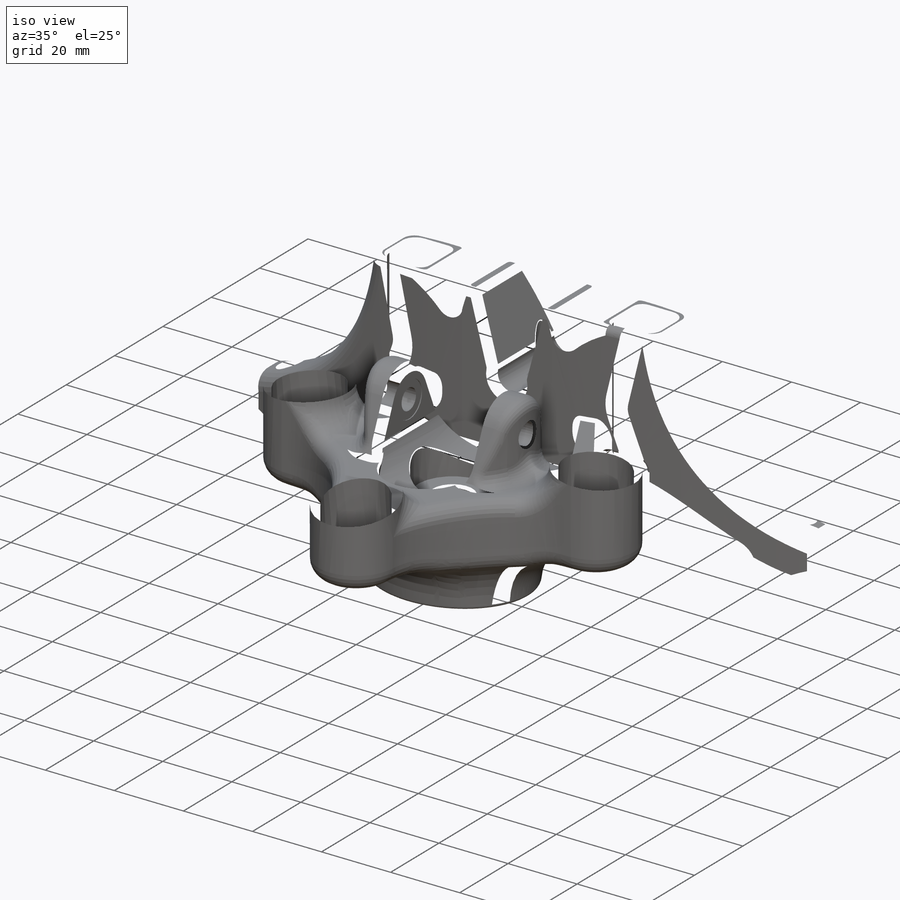
[diagram: iso view]
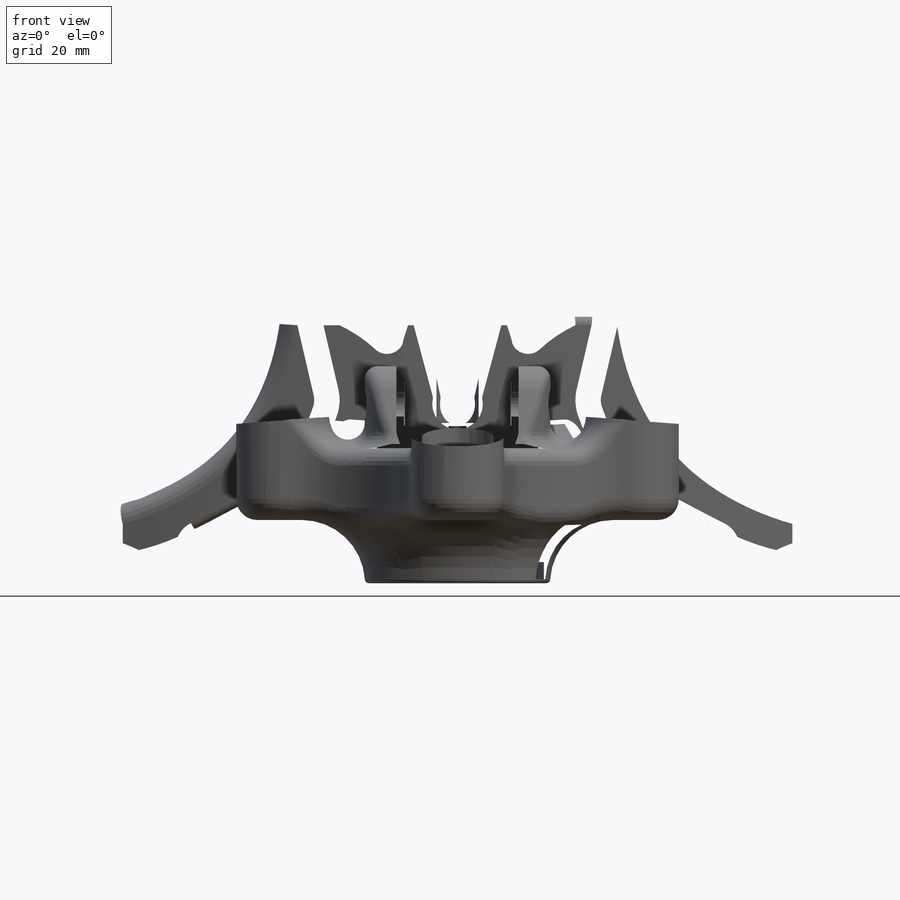
[diagram: front view]
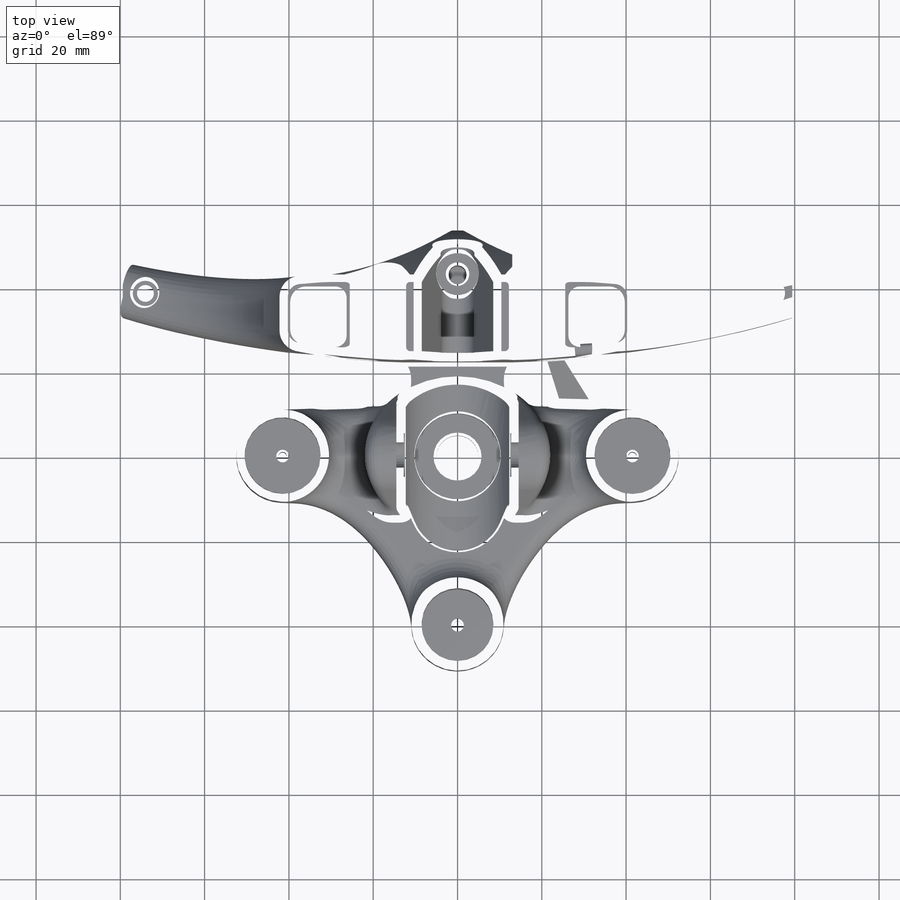
[diagram: top view]
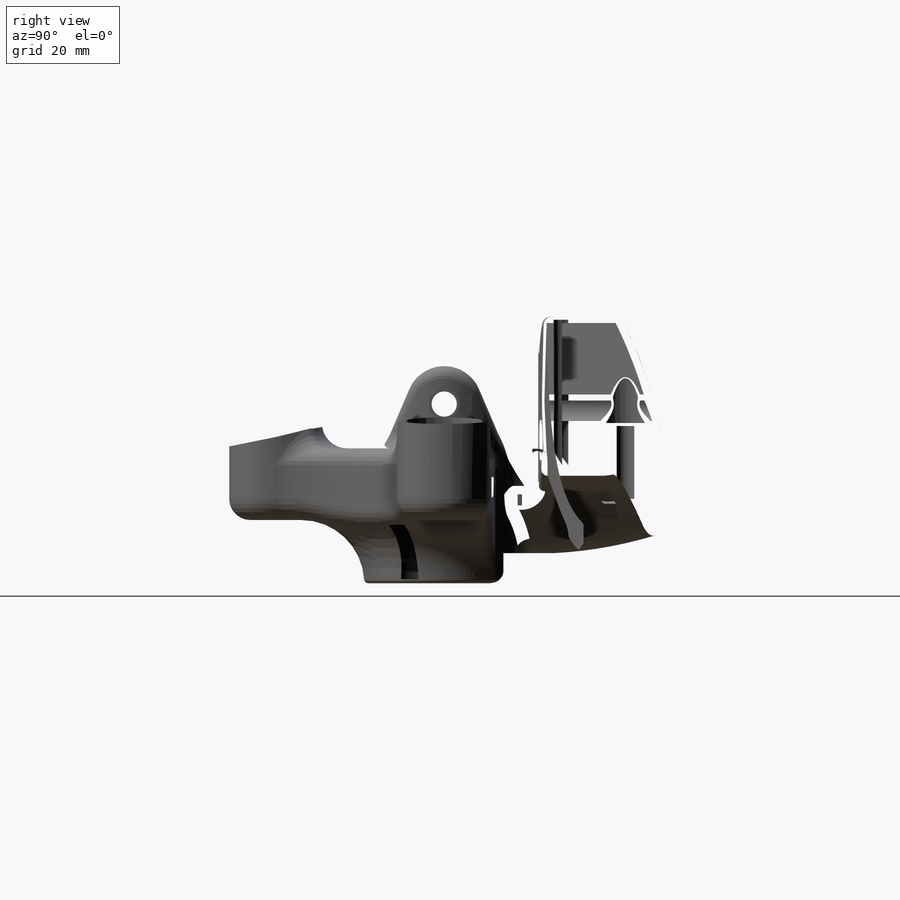
[diagram: right view]
SOLIDWORKS PART (.sldprt)
format: sldprt  version: not decoded by parser v0  size: 15,172,096 bytes
history: native  units: mm
features: fillet x52, sketch x46, cut_extrude x30, mirror x13, extrude x12, plane x9, chamfer x5, material x1, sweep x1, move_body x1, boolean_combine x1 + 3 further entries (+14 scaffold rows collapsed; 3 parser-record rows omitted)
feature tree (191):
  scaffold x14  (default folders/planes/origin — collapsed)
  material  "Material <nicht festgelegt>"
  plane  "Vorne"
  plane  "Oben"
  plane  "Rechts"
  sketch  "Skizze1"  dims[D1=38.0mm D2=44.0mm]
  extrude  "Aufsatz-Linear austragen1"  Depth=37.5mm
  sketch  "Skizze2"  dims[D1=27.5mm]
  sketch  "Skizze3"  dims[D1=25.0mm D2=12.5mm]
  cut_extrude  "Schnitt-Linear austragen1"  Depth=17.5mm
  sketch  "Skizze4"  dims[D1=10.3mm D2=7.5mm]
  cut_extrude  "Schnitt-Linear austragen2"  Depth=12.75mm
  sketch  "Skizze5"  dims[D1=6.0mm]
  cut_extrude  "Schnitt-Linear austragen3"  Depth=30mm
  sketch  "Skizze6"  dims[D2=9.0mm D1=13.0mm]
  cut_extrude  "Schnitt-Linear austragen4"  Depth=30mm
  mirror  "Spiegeln1"
  sketch  "Skizze7"  dims[D1=3.0mm]
  cut_extrude  "Schnitt-Linear austragen5"  Depth=20mm
  sketch  "Skizze8"
  cut_extrude  "Schnitt-Linear austragen6"  Depth=20mm
  mirror  "Spiegeln2"
  sketch  "Skizze9"  dims[D1=22.0mm D2=41.5mm D3=12.0mm D4=12.0mm D5=14.0mm]
  extrude  "Aufsatz-Linear austragen2"  Depth=15mm
  sketch  "Skizze10"  dims[D1=18.0mm]
  cut_extrude  "Schnitt-Linear austragen7"  Depth=4mm
  mirror  "Spiegeln3"
  sketch  "Skizze11"  dims[D1=22.0mm D2=25.0mm D3=10.0mm D4=12.5mm D5=40.0mm]
  extrude  "Aufsatz-Linear austragen3"  Depth=15mm
  sketch  "Skizze12"
  cut_extrude  "Schnitt-Linear austragen8"  [1 undecoded]
  sketch  "Skizze13"  dims[D1=17.0mm]
  cut_extrude  "Schnitt-Linear austragen9"  Depth=10mm
  sketch  "Skizze14"  dims[D1=15.0mm D5=1.5mm D6=10.0mm D7=5.0mm]
  sketch  "Skizze15"
  extrude  "Aufsatz-Linear austragen4"  Depth=13mm
  sketch  "Skizze17"  dims[c1.D3=8.0mm c1.D1=6.0mm c1.D2=3.0mm c2.D3=~18.332977mm c3.D3=115.0deg c3.D4=~18.332977mm c4.D4=15.0deg c4.D1=27.5mm c4.D2=~19.240966mm c5.D2=15.0deg]
  cut_extrude  "Schnitt-Linear austragen10"  Depth=30mm
  fillet  "Verrundung1"  Radius=15mm
  fillet  "Verrundung10"  Radius=1mm
  sketch  "Skizze24"  dims[D1=2.0mm D2=2.0mm D3=2.0mm]
  cut_extrude  "Schnitt-Linear austragen15"  Depth=20mm
  sketch  "Skizze25"
  extrude  "Aufsatz-Linear austragen7"  Depth=15mm
  sketch  "Skizze26"  dims[D1=10.0mm]
  cut_extrude  "Schnitt-Linear austragen16"  Depth=20mm
  sketch  "Skizze27"  dims[D1=20.3mm]
  cut_extrude  "Schnitt-Linear austragen17"  Depth=20mm
  sketch  "Skizze29"
  extrude  "Aufsatz-Linear austragen8"  Depth=10mm
  sketch  "Skizze30"  dims[D1=28.0mm]
  extrude  "Aufsatz-Linear austragen9"  [1 undecoded]
  mirror  "Spiegeln10"
  fillet  "Verrundung34"  Radius=15mm
  fillet  "Verrundung45"  Radius=5mm
  sketch  "Skizze33"
  extrude  "Aufsatz-Linear austragen10"  Depth=10mm
  sketch  "Skizze31"  dims[D1=4.2mm D2=43.0mm]
  cut_extrude  "Schnitt-Linear austragen19"  Depth=25mm
  sketch  "Skizze32"  dims[D1=10.0mm]
  cut_extrude  "Schnitt-Linear austragen20"  Depth=7mm
  chamfer  "Fase1"  Distance=0.7mm Angle=45deg
  sketch  "Skizze34"  dims[D1=0.0mm]
  extrude  "Aufsatz-Linear austragen11"  [1 undecoded]
  fillet  "Verrundung43"  Radius=8mm
  fillet  "Verrundung49"  Radius=4mm
  fillet  "Verrundung50"  Radius=3mm
  fillet  "Verrundung51"  Radius=5mm
  fillet  "Verrundung52"  Radius=4mm
  fillet  "Verrundung53"  Radius=6mm
  fillet  "Verrundung54"  Radius=5mm
  fillet  "Verrundung55"  Radius=2mm
  fillet  "Verrundung57"  Radius=2mm
  fillet  "Verrundung56"  Radius=0.5mm
  sketch  "Skizze36"
  extrude  "Aufsatz-Linear austragen12"  Depth=70mm
  sketch  "Skizze37"  dims[c1.D1=23.0mm c1.D2=5.0mm c2.D1=42.0mm]
  cut_extrude  "Schnitt-Linear austragen21"  Depth=50mm
  sketch  "Skizze38"  dims[D1=3.0mm]
  cut_extrude  "Schnitt-Linear austragen22"  Depth=70mm
  sketch  "Skizze39"  dims[D1=0.0mm]
  cut_extrude  "Schnitt-Linear austragen23"  [1 undecoded]
  sketch  "Skizze40"
  extrude  "Aufsatz-Linear austragen13"  Depth=70mm
  mirror  "Spiegeln11"
  fillet  "Verrundung58"  Radius=5mm
  fillet  "Verrundung59"  Radius=5mm
  fillet  "Verrundung70"  Radius=8mm
  fillet  "Verrundung60"  Radius=5mm
  sketch  "Skizze57"
  cut_extrude  "Schnitt-Linear austragen34"  Depth=30mm
  mirror  "Spiegeln18"
  fillet  "Verrundung61"  Radius=5mm
  fillet  "Verrundung62"  Radius=6mm
  fillet  "Verrundung64"  Radius=3mm
  fillet  "Verrundung65"  Radius=2mm
  fillet  "Verrundung66"  Radius=4mm
  fillet  "Verrundung77"  Radius=1.5mm
  fillet  "Verrundung75"  Radius=1.5mm
  sketch  "Skizze42"  dims[c1.D2=10.0mm c1.D3=10.0mm c1.D6=3.0mm c1.D1=32.5mm c1.D4=35.0mm c1.D5=35.0mm c2.D3=12.0mm c2.D2=3.0mm]
  cut_extrude  "Schnitt-Linear austragen24"  [1 undecoded]
  mirror  "Spiegeln13"
  sketch  "Skizze43"
  cut_extrude  "Schnitt-Linear austragen25"  Depth=70mm
  mirror  "Spiegeln12"
  fillet  "Verrundung71"  Radius=1mm
  fillet  "Verrundung72"  Radius=3mm
  fillet  "Verrundung67"  Radius=2mm
  fillet  "Verrundung68"  Radius=2mm
  sketch  "Skizze45"
  cut_extrude  "Schnitt-Linear austragen26"  Depth=8mm
  mirror  "Spiegeln14"
  fillet  "Verrundung80"  Radius=3mm
  fillet  "Verrundung69"  Radius=0.7mm
  fillet  "Verrundung89"  Radius=1mm
  fillet  "Verrundung73"  Radius=2mm
  fillet  "Verrundung79"  Radius=3mm
  sketch  "Skizze46"
  cut_extrude  "Schnitt-Linear austragen27"  Depth=15mm
  mirror  "Spiegeln15"
  fillet  "Verrundung81"  Radius=0.7mm
  sketch  "Skizze47"
  cut_extrude  "Schnitt-Linear austragen28"  Depth=15mm
  fillet  "Verrundung82"  Radius=1mm
  sketch  "Skizze48"  dims[D1=14.0mm D2=28.0mm]
  cut_extrude  "Schnitt-Linear austragen29"  [1 undecoded]
  chamfer  "Fase2"  Distance=0.5mm Angle=45deg
  fillet  "Verrundung83"  Radius=3mm
  fillet  "Verrundung84"  Radius=0.5mm
  sketch  "Skizze49"  dims[D1=6.0mm]
  cut_extrude  "Schnitt-Linear austragen30"  Depth=2mm
  fillet  "Verrundung85"  Radius=0.5mm
  plane  "Ebene1"  Offset=6mm
  plane  "Ebene2"  Offset=30mm
  sketch  "Skizze51"  dims[D1=10.0mm D2=20.0mm]
  sketch  "Skizze52"  dims[D1=10.0mm]
  sweep  "Austragung2"
  sketch  "Skizze53"  dims[D1=6.0mm]
  cut_extrude  "Schnitt-Linear austragen31"  Depth=10mm
  sketch  "Skizze54"  dims[D1=4.0mm]
  cut_extrude  "Schnitt-Linear austragen32"  Depth=10mm
  mirror  "Spiegeln17"
  fillet  "Verrundung86"  Radius=0.5mm
  plane  "Ebene vorne-baugruppe oberkörper für mep"
  plane  "Ebene oben-baugruppe oberkörper für mep"
  plane  "Ebene rechts-baugruppe oberkörper für mep"
  plane  "Ebene1-baugruppe oberkörper für mep"
  "baugruppe oberkörper für mep"
  parser-record x3  (decoder bookkeeping rows leaked as tree rows — omitted from the tree; the rows remain in map.json)
  move_body  "Körper-Verschieben/Kopieren2"
  "Konzentrisch1"
  "Deckungsgleich7"
  boolean_combine  "Kombinieren1"
  fillet  "Verrundung87"  Radius=1mm
  fillet  "Verrundung88"  Radius=1mm
  sketch  "Skizze55"
  extrude  "Aufsatz-Linear austragen14"  Depth=15mm
  sketch  "Skizze58"
  cut_extrude  "Schnitt-Linear austragen35"  Depth=30mm
  mirror  "Spiegeln19"
  fillet  "Verrundung90"  Radius=1.5mm
  fillet  "Verrundung91"  Radius=1.5mm
  fillet  "Verrundung92"  Radius=1.5mm
  fillet  "Verrundung93"  Radius=0.5mm
  sketch  "Skizze59"  dims[D1=4.0mm D2=4.0mm]
  cut_extrude  "Schnitt-Linear austragen36"  Depth=10mm
  mirror  "Spiegeln20"
  fillet  "Verrundung94"  Radius=10mm
  fillet  "Verrundung95"  Radius=6mm
  fillet  "Verrundung96"  Radius=1mm
  fillet  "Verrundung97"  Radius=1mm
  fillet  "Verrundung98"  Radius=0.5mm
  fillet  "Verrundung99"  Radius=0.5mm
  chamfer  "Fase3"  Distance=0.7mm Angle=45deg
  chamfer  "Fase4"  Distance=0.7mm Angle=45deg
  chamfer  "Fase5"  Distance=0.7mm Angle=45deg
decode coverage: 124 of 161 modeling features carry decoded parameters; 3 rows unclassified (native names shown)
note: ~ marks probable driven/reference dimensions
note: 6 parameter values undecoded
summary: no parameter record found for 6 features
note: suppression state not decoded; provenance and decode notes live in map.json
